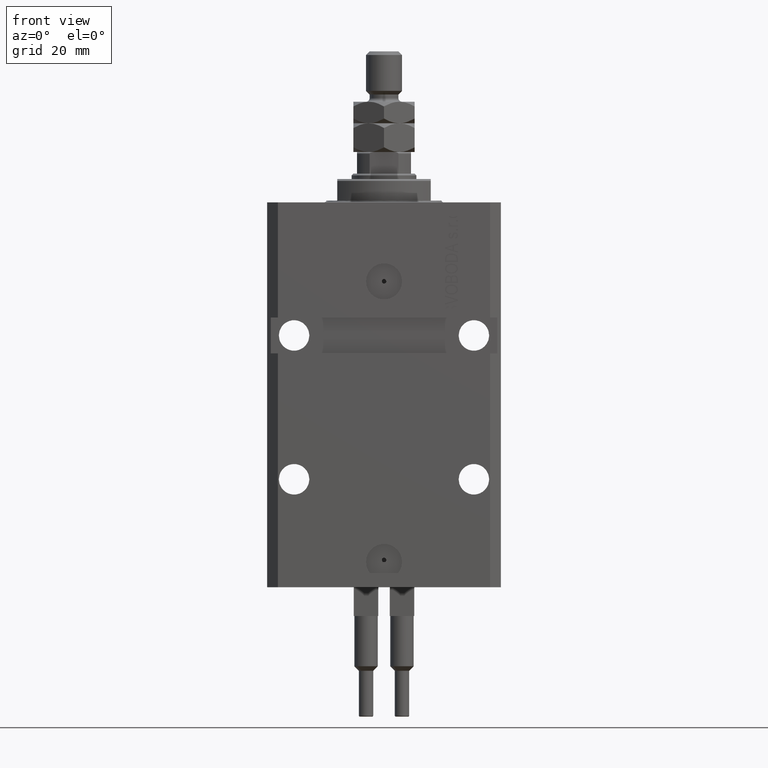
[diagram: clean part render]
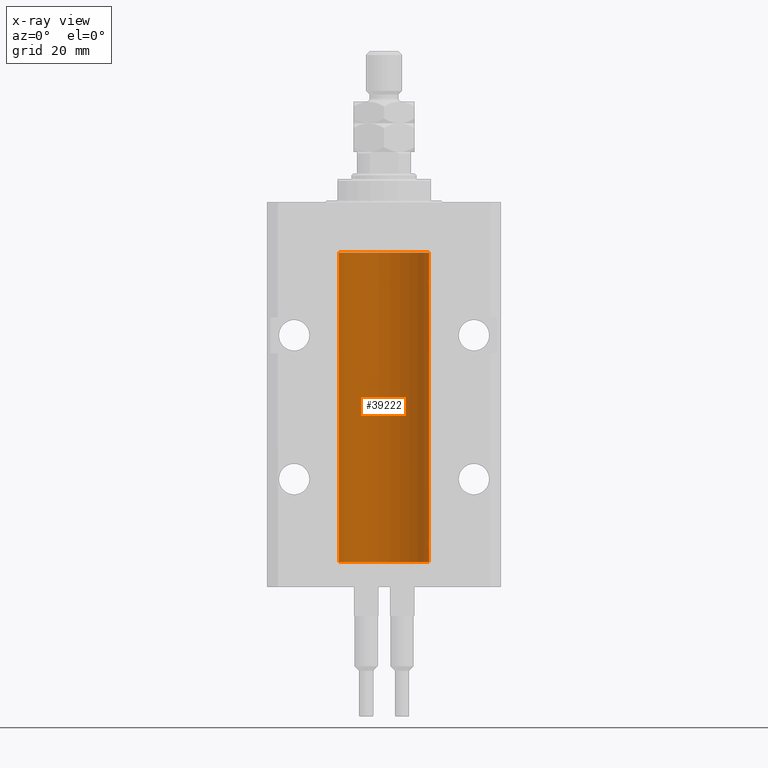
[diagram: x-ray — body ghosted, one internal face saturated and labeled with its STEP entity id]
A machine part, front view, then the same camera in x-ray: the body is ghosted and one INTERNAL B-rep face — a face not visible from any outside direction — is saturated and labeled: STEP entity #39222.
In plain terms, the highlighted cylindrical surface (partial cylindrical patch) has radius 12.5 mm, axis along (0, 0, 1).
Its self-contained STEP definition (entity closure, byte-faithful):
#30 = VERTEX_POINT ( 'NONE', #10836 ) ;
#258 = CARTESIAN_POINT ( 'NONE',  ( 12.48436522214846889, 0.6250000000078781426, -21.99999999999923261 ) ) ;
#380 = CYLINDRICAL_SURFACE ( 'NONE', #10625, 12.50000000000000000 ) ;
#1818 = CARTESIAN_POINT ( 'NONE',  ( 12.49012055744648997, 0.5002956126656082914, -94.61641710202405875 ) ) ;
#1972 = EDGE_CURVE ( 'NONE', #30, #31150, #10448, .T. ) ;
#2066 = CARTESIAN_POINT ( 'NONE',  ( 12.49631206032076136, 0.3252904079142934779, -94.44139700214928723 ) ) ;
#2306 = CARTESIAN_POINT ( 'NONE',  ( 12.48810305280568222, 0.5461368461738485003, -94.68525466142676805 ) ) ;
#2559 = CARTESIAN_POINT ( 'NONE',  ( 12.49421963472024721, 0.3844519291903572555, -95.49947303647047647 ) ) ;
#3566 = VERTEX_POINT ( 'NONE', #22586 ) ;
#3584 = ORIENTED_EDGE ( 'NONE', *, *, #43278, .T. ) ;
#4368 = CARTESIAN_POINT ( 'NONE',  ( 12.50000000000000000, -1.836039810331332019E-15, -95.62500000000000000 ) ) ;
#4372 = CARTESIAN_POINT ( 'NONE',  ( -12.50000000000000000, 1.530808498934191521E-15, -100.0999999999999943 ) ) ;
#5084 = VERTEX_POINT ( 'NONE', #27851 ) ;
#5304 = DIRECTION ( 'NONE',  ( 1.000000000000000000, 0.000000000000000000, 0.000000000000000000 ) ) ;
#5532 = CARTESIAN_POINT ( 'NONE',  ( 12.48436522214846889, 0.6250000000078781426, -21.99999999999923261 ) ) ;
#7008 = VECTOR ( 'NONE', #36867, 1000.000000000000000 ) ;
#8225 = CARTESIAN_POINT ( 'NONE',  ( -12.50000000000000000, 1.530808498934191521E-15, -13.99999999999999822 ) ) ;
#10448 = CIRCLE ( 'NONE', #23428, 12.50000000000000000 ) ;
#10625 = AXIS2_PLACEMENT_3D ( 'NONE', #28263, #43459, #43212 ) ;
#10836 = CARTESIAN_POINT ( 'NONE',  ( 12.50000000000000000, 0.000000000000000000, -100.0999999999999943 ) ) ;
#11026 = CARTESIAN_POINT ( 'NONE',  ( 0.000000000000000000, 0.000000000000000000, -100.0999999999999943 ) ) ;
#11497 = CARTESIAN_POINT ( 'NONE',  ( 12.50000000000000000, 0.000000000000000000, -13.99999999999999822 ) ) ;
#12161 = CARTESIAN_POINT ( 'NONE',  ( 12.49421963472024366, 0.3844519291903583103, -22.49947303647044805 ) ) ;
#12984 = CARTESIAN_POINT ( 'NONE',  ( 12.48436522214846889, 0.6250000000078781426, -21.99999999999923261 ) ) ;
#13635 = CARTESIAN_POINT ( 'NONE',  ( 12.49012055744648997, 0.5002956126655976332, -21.61641710202404454 ) ) ;
#13884 = ORIENTED_EDGE ( 'NONE', *, *, #30333, .T. ) ;
#13956 = CARTESIAN_POINT ( 'NONE',  ( 12.50000000000017941, 3.868073689162038701E-13, -94.37499999999640465 ) ) ;
#14105 = DIRECTION ( 'NONE',  ( 1.000000000000000000, 0.000000000000000000, 0.000000000000000000 ) ) ;
#14187 = EDGE_CURVE ( 'NONE', #36764, #29585, #44133, .T. ) ;
#15247 = B_SPLINE_CURVE_WITH_KNOTS ( 'NONE', 3,
 ( #16011, #39336, #44624, #2306, #1818, #2066, #17272, #13956 ),
 .UNSPECIFIED., .F., .F.,
 ( 4, 2, 2, 4 ),
 ( 0.0009773924225142606621, 0.001221629287363811033, 0.001465866152213361404, 0.001954339881912461711 ),
 .UNSPECIFIED. ) ;
#15428 = VECTOR ( 'NONE', #35162, 1000.000000000000000 ) ;
#16011 = CARTESIAN_POINT ( 'NONE',  ( 12.48436522214846711, 0.6250000000078848039, -94.99999999999923261 ) ) ;
#16223 = CARTESIAN_POINT ( 'NONE',  ( 12.49625698805480667, 0.3151108292486967666, -22.54593695688170385 ) ) ;
#16368 = EDGE_CURVE ( 'NONE', #31150, #39311, #18413, .T. ) ;
#16710 = ORIENTED_EDGE ( 'NONE', *, *, #42404, .T. ) ;
#17272 = CARTESIAN_POINT ( 'NONE',  ( 12.49999999999999822, 0.1631389616600901760, -94.37500000000024158 ) ) ;
#17303 = ORIENTED_EDGE ( 'NONE', *, *, #1972, .F. ) ;
#17680 = CARTESIAN_POINT ( 'NONE',  ( -12.50000000000000000, 1.530808498934191521E-15, -100.0999999999999943 ) ) ;
#18413 = LINE ( 'NONE', #17680, #40058 ) ;
#19013 = CARTESIAN_POINT ( 'NONE',  ( 12.48436522214885969, 0.6250000000001448841, -22.16312747540307271 ) ) ;
#19179 = ORIENTED_EDGE ( 'NONE', *, *, #16368, .F. ) ;
#19837 = CARTESIAN_POINT ( 'NONE',  ( 12.49999999999999822, 0.08262306818362624705, -95.62499999999998579 ) ) ;
#21681 = CARTESIAN_POINT ( 'NONE',  ( 12.50000000000000000, -1.836039810331332019E-15, -95.62500000000000000 ) ) ;
#22586 = CARTESIAN_POINT ( 'NONE',  ( 12.50000000000017941, 3.868073565084946818E-13, -21.37499999999641176 ) ) ;
#22959 = DIRECTION ( 'NONE',  ( -0.000000000000000000, -0.000000000000000000, 1.000000000000000000 ) ) ;
#23079 = ORIENTED_EDGE ( 'NONE', *, *, #24584, .T. ) ;
#23399 = VERTEX_POINT ( 'NONE', #30160 ) ;
#23428 = AXIS2_PLACEMENT_3D ( 'NONE', #11026, #48825, #14105 ) ;
#23997 = VERTEX_POINT ( 'NONE', #21681 ) ;
#24584 = EDGE_CURVE ( 'NONE', #23399, #36764, #34622, .T. ) ;
#25005 = B_SPLINE_CURVE_WITH_KNOTS ( 'NONE', 3,
 ( #4368, #19837, #46926, #25865, #2559, #45119, #48678, #32997 ),
 .UNSPECIFIED., .F., .F.,
 ( 4, 2, 2, 4 ),
 ( 1.784246692340212412E-18, 0.0002443481056285665750, 0.0004886962112571313068, 0.0009773924225142606621 ),
 .UNSPECIFIED. ) ;
#25054 = CARTESIAN_POINT ( 'NONE',  ( 12.48520578595314845, 0.6087855079133684955, -21.83656717509346024 ) ) ;
#25578 = EDGE_CURVE ( 'NONE', #30, #23997, #43956, .T. ) ;
#25865 = CARTESIAN_POINT ( 'NONE',  ( 12.49625698805481022, 0.3151108292486944906, -95.54593695688171806 ) ) ;
#27026 = CARTESIAN_POINT ( 'NONE',  ( 12.50000000000000000, 0.000000000000000000, -100.0999999999999943 ) ) ;
#27273 = VECTOR ( 'NONE', #22959, 1000.000000000000000 ) ;
#27643 = CARTESIAN_POINT ( 'NONE',  ( 12.48809900631782099, 0.5573988467445639694, -22.32640147935474317 ) ) ;
#27851 = CARTESIAN_POINT ( 'NONE',  ( 12.48436522214846711, 0.6250000000078848039, -94.99999999999923261 ) ) ;
#27977 = ORIENTED_EDGE ( 'NONE', *, *, #44693, .T. ) ;
#28263 = CARTESIAN_POINT ( 'NONE',  ( 0.000000000000000000, 0.000000000000000000, -100.0999999999999943 ) ) ;
#28485 = EDGE_LOOP ( 'NONE', ( #19179, #17303, #46509, #44653, #13884, #23079, #35656, #16710, #3584, #27977 ) ) ;
#29585 = VERTEX_POINT ( 'NONE', #12984 ) ;
#30160 = CARTESIAN_POINT ( 'NONE',  ( 12.50000000000017941, 3.868073689162038701E-13, -94.37499999999640465 ) ) ;
#30333 = EDGE_CURVE ( 'NONE', #5084, #23399, #15247, .T. ) ;
#30408 = CARTESIAN_POINT ( 'NONE',  ( 12.50000000000000000, -1.470318446642941360E-15, -22.62500000000000000 ) ) ;
#31150 = VERTEX_POINT ( 'NONE', #4372 ) ;
#32916 = CARTESIAN_POINT ( 'NONE',  ( 12.49631206032075958, 0.3252904079142808214, -21.44139700214925526 ) ) ;
#32997 = CARTESIAN_POINT ( 'NONE',  ( 12.48436522214846711, 0.6250000000078848039, -94.99999999999923261 ) ) ;
#33224 = LINE ( 'NONE', #43503, #15428 ) ;
#33325 = AXIS2_PLACEMENT_3D ( 'NONE', #35737, #36735, #5304 ) ;
#34622 = LINE ( 'NONE', #27026, #27273 ) ;
#34989 = CARTESIAN_POINT ( 'NONE',  ( 12.50000000000000000, -1.470318446642941360E-15, -22.62500000000000000 ) ) ;
#35162 = DIRECTION ( 'NONE',  ( -0.000000000000000000, -0.000000000000000000, 1.000000000000000000 ) ) ;
#35656 = ORIENTED_EDGE ( 'NONE', *, *, #14187, .T. ) ;
#35737 = CARTESIAN_POINT ( 'NONE',  ( 0.000000000000000000, 0.000000000000000000, -13.99999999999999822 ) ) ;
#36723 = CARTESIAN_POINT ( 'NONE',  ( 12.49999999999999112, 0.1631389616600879555, -21.37500000000019185 ) ) ;
#36735 = DIRECTION ( 'NONE',  ( 0.000000000000000000, 0.000000000000000000, 1.000000000000000000 ) ) ;
#36764 = VERTEX_POINT ( 'NONE', #30408 ) ;
#36867 = DIRECTION ( 'NONE',  ( -0.000000000000000000, -0.000000000000000000, 1.000000000000000000 ) ) ;
#38908 = FACE_OUTER_BOUND ( 'NONE', #28485, .T. ) ;
#39222 = ADVANCED_FACE ( 'NONE', ( #38908 ), #380, .F. ) ;
#39298 = CARTESIAN_POINT ( 'NONE',  ( 12.49999999999999822, 0.08262306818362555316, -22.62499999999997513 ) ) ;
#39311 = VERTEX_POINT ( 'NONE', #8225 ) ;
#39336 = CARTESIAN_POINT ( 'NONE',  ( 12.48436522214888100, 0.6249999999996834754, -94.91847339462351840 ) ) ;
#40058 = VECTOR ( 'NONE', #41475, 1000.000000000000000 ) ;
#40495 = CARTESIAN_POINT ( 'NONE',  ( 12.48810305280568222, 0.5461368461738448365, -21.68525466142676805 ) ) ;
#41475 = DIRECTION ( 'NONE',  ( -0.000000000000000000, -0.000000000000000000, 1.000000000000000000 ) ) ;
#42057 = CARTESIAN_POINT ( 'NONE',  ( 12.49915742890631876, 0.1636982395582437522, -22.60872397847025539 ) ) ;
#42404 = EDGE_CURVE ( 'NONE', #29585, #3566, #50122, .T. ) ;
#42704 = VERTEX_POINT ( 'NONE', #11497 ) ;
#43212 = DIRECTION ( 'NONE',  ( 1.000000000000000000, 0.000000000000000000, 0.000000000000000000 ) ) ;
#43278 = EDGE_CURVE ( 'NONE', #3566, #42704, #33224, .T. ) ;
#43459 = DIRECTION ( 'NONE',  ( -0.000000000000000000, -0.000000000000000000, 1.000000000000000000 ) ) ;
#43503 = CARTESIAN_POINT ( 'NONE',  ( 12.50000000000000000, 0.000000000000000000, -100.0999999999999943 ) ) ;
#43956 = LINE ( 'NONE', #47751, #7008 ) ;
#44133 = B_SPLINE_CURVE_WITH_KNOTS ( 'NONE', 3,
 ( #34989, #39298, #42057, #16223, #12161, #27643, #19013, #258 ),
 .UNSPECIFIED., .F., .F.,
 ( 4, 2, 2, 4 ),
 ( 2.576359803311334014E-18, 0.0002443481056285645150, 0.0004886962112571264279, 0.0009773924225142506875 ),
 .UNSPECIFIED. ) ;
#44624 = CARTESIAN_POINT ( 'NONE',  ( 12.48520578595314845, 0.6087855079133740466, -94.83656717509346379 ) ) ;
#44653 = ORIENTED_EDGE ( 'NONE', *, *, #47318, .T. ) ;
#44693 = EDGE_CURVE ( 'NONE', #42704, #39311, #49458, .T. ) ;
#45119 = CARTESIAN_POINT ( 'NONE',  ( 12.48809900631782099, 0.5573988467445673001, -95.32640147935475738 ) ) ;
#46509 = ORIENTED_EDGE ( 'NONE', *, *, #25578, .T. ) ;
#46926 = CARTESIAN_POINT ( 'NONE',  ( 12.49915742890631876, 0.1636982395582385896, -95.60872397847028026 ) ) ;
#47318 = EDGE_CURVE ( 'NONE', #23997, #5084, #25005, .T. ) ;
#47751 = CARTESIAN_POINT ( 'NONE',  ( 12.50000000000000000, 0.000000000000000000, -100.0999999999999943 ) ) ;
#48112 = CARTESIAN_POINT ( 'NONE',  ( 12.48436522214888100, 0.6249999999996762590, -21.91847339462350774 ) ) ;
#48350 = CARTESIAN_POINT ( 'NONE',  ( 12.50000000000017941, 3.868073565084946818E-13, -21.37499999999641176 ) ) ;
#48678 = CARTESIAN_POINT ( 'NONE',  ( 12.48436522214885969, 0.6250000000001505462, -95.16312747540308692 ) ) ;
#48825 = DIRECTION ( 'NONE',  ( 0.000000000000000000, 0.000000000000000000, 1.000000000000000000 ) ) ;
#49458 = CIRCLE ( 'NONE', #33325, 12.50000000000000000 ) ;
#50122 = B_SPLINE_CURVE_WITH_KNOTS ( 'NONE', 3,
 ( #5532, #48112, #25054, #40495, #13635, #32916, #36723, #48350 ),
 .UNSPECIFIED., .F., .F.,
 ( 4, 2, 2, 4 ),
 ( 0.0009773924225142506875, 0.001221629287363794770, 0.001465866152213338852, 0.001954339881912434389 ),
 .UNSPECIFIED. ) ;